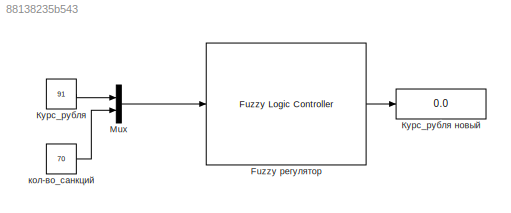
MODEL slx_88138235b543
KIND model
CONFIG AbsTol = auto
CONFIG EnableMultiTasking = off
CONFIG FixedStep = auto
CONFIG MaxStep = auto
CONFIG MinStep = auto
CONFIG RelTol = 1e-3
CONFIG SampleTimeConstraint = Unconstrained
CONFIG SolverName = VariableStepAuto
CONFIG StartTime = 0.0
CONFIG StopTime = 10.0
BLOCK [Reference] Fuzzy регулятор  REF=fuzblock/Fuzzy Logic   (lib defined in mdl_858b3b3e7478)
Controller
  SourceBlock = fuzblock/Fuzzy Logic \nController
  SourceType = Fuzzy Inference System
BLOCK [Mux] Mux
  DisplayOption = bar
  Inputs = 2
BLOCK [Constant] Курс_рубля
  Value = 91
BLOCK [Display] Курс_рубля новый
  Decimation = 1
BLOCK [Constant] кол-во_санкций
  Value = 70
LINE Fuzzy регулятор:1 -> Курс_рубля новый:1
LINE Mux:1 -> Fuzzy регулятор:1
LINE Курс_рубля:1 -> Mux:1
LINE кол-во_санкций:1 -> Mux:2
